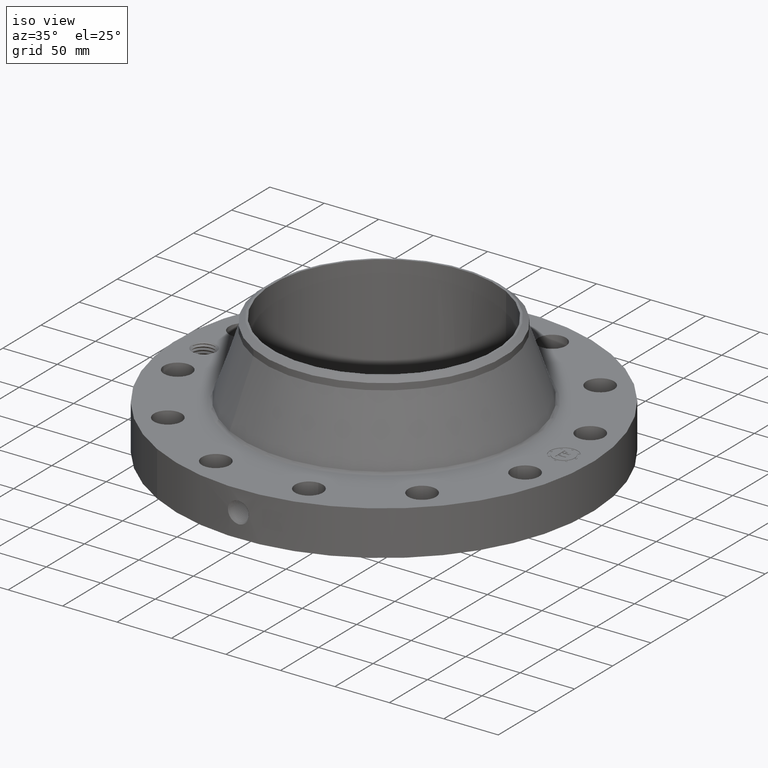
[diagram: clean part render]
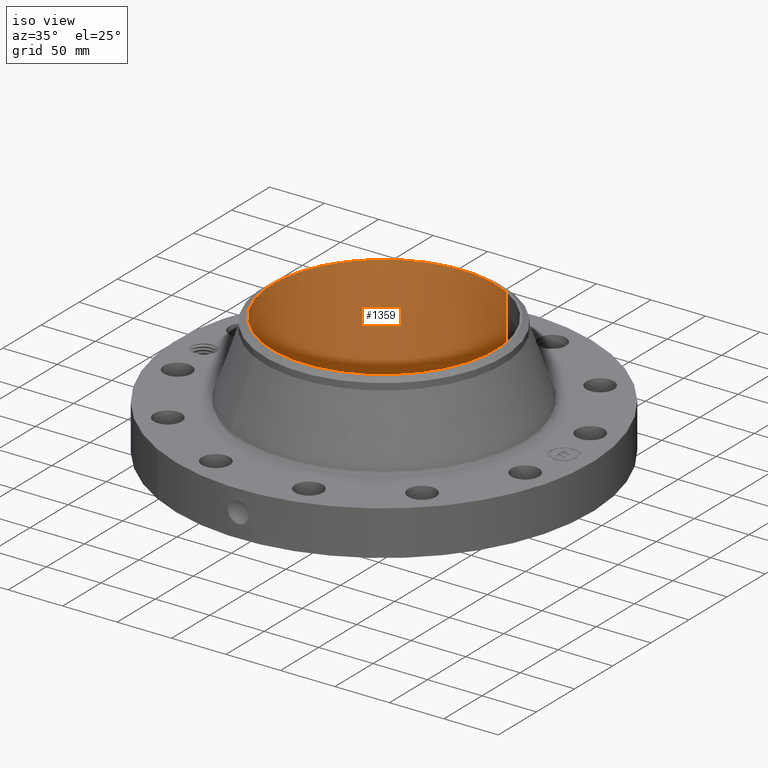
[diagram: same view with one face highlighted and labeled with its STEP entity id]
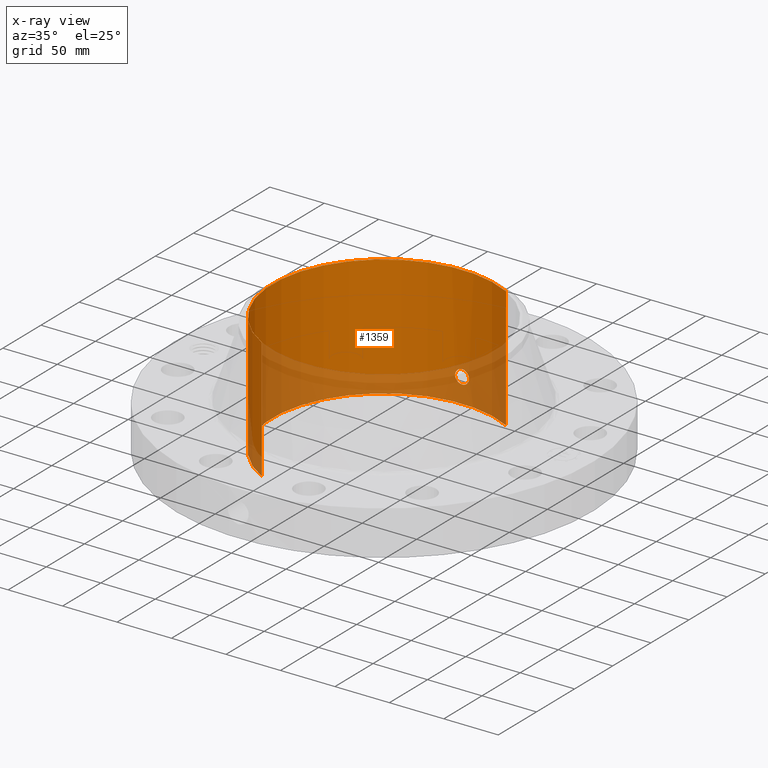
[diagram: x-ray of the same camera — body ghosted, the highlighted face saturated]
A machine part, iso view. The second image highlights one B-rep face of the part: STEP entity #1359.
The next image is the same camera in x-ray: the body ghosted, the highlighted face saturated — about 27% of this face is hidden behind the body in this view.
In plain terms, the highlighted cylindrical surface (partial cylindrical patch) has radius 102.502 mm, axis along (0, 0, -1).
Its self-contained STEP definition (entity closure, byte-faithful):
#223=AXIS2_PLACEMENT_3D('Circle Axis2P3D',#221,#222,$) ;
#1236=AXIS2_PLACEMENT_3D('Cylinder Axis2P3D',#1233,#1234,#1235) ;
#1308=AXIS2_PLACEMENT_3D('Circle Axis2P3D',#1306,#1307,$) ;
#216=CARTESIAN_POINT('Vertex',(1.93472176105,3.54148442852,0.0600000000002)) ;
#218=CARTESIAN_POINT('Vertex',(-1.93472176105,-3.54148442852,0.0600000000002)) ;
#221=CARTESIAN_POINT('Axis2P3D Location',(0.,0.,0.0600000000002)) ;
#1233=CARTESIAN_POINT('Axis2P3D Location',(0.,0.,2.25000000001)) ;
#1242=CARTESIAN_POINT('Vertex',(1.93472176104,3.54148442852,4.44000000002)) ;
#1244=CARTESIAN_POINT('Vertex',(-1.93472176105,-3.54148442852,4.44000000002)) ;
#1247=CARTESIAN_POINT('Line Origine',(1.93472176105,3.54148442852,2.25000000001)) ;
#1252=CARTESIAN_POINT('Line Origine',(-1.93472176105,-3.54148442852,2.25000000001)) ;
#1306=CARTESIAN_POINT('Axis2P3D Location',(0.,0.,4.44000000002)) ;
#1318=CARTESIAN_POINT('Control Point',(0.219395640473,4.02953171015,1.05985638466)) ;
#1319=CARTESIAN_POINT('Control Point',(0.206921897875,4.03021086717,1.08268941733)) ;
#1320=CARTESIAN_POINT('Control Point',(0.191479220651,4.03100326363,1.10389712388)) ;
#1321=CARTESIAN_POINT('Control Point',(0.173347707623,4.03184763012,1.12296744039)) ;
#1322=CARTESIAN_POINT('Control Point',(0.112154131034,4.03428922436,1.17243672759)) ;
#1323=CARTESIAN_POINT('Control Point',(0.0350123426819,4.03587551204,1.19596634699)) ;
#1324=CARTESIAN_POINT('Control Point',(-0.0195280777705,4.03599449568,1.19761227387)) ;
#1325=CARTESIAN_POINT('Control Point',(-0.124103877723,4.03424989946,1.17248651285)) ;
#1326=CARTESIAN_POINT('Control Point',(-0.20314304521,4.03063623123,1.09961257144)) ;
#1327=CARTESIAN_POINT('Control Point',(-0.232130154619,4.02885574928,1.05341902732)) ;
#1328=CARTESIAN_POINT('Control Point',(-0.255826961291,4.02738808668,0.975254533023)) ;
#1329=CARTESIAN_POINT('Control Point',(-0.248306737183,4.02785344579,0.895845211312)) ;
#1330=CARTESIAN_POINT('Control Point',(-0.242072390403,4.02824497786,0.869244316291)) ;
#1331=CARTESIAN_POINT('Control Point',(-0.232330199642,4.02882746308,0.843820167096)) ;
#1332=CARTESIAN_POINT('Control Point',(-0.219395640473,4.02953171015,0.820143615352)) ;
#1333=CARTESIAN_POINT('Vertex',(0.219395640473,4.02953171015,1.05985638466)) ;
#1335=CARTESIAN_POINT('Vertex',(-0.219395640473,4.02953171015,0.820143615352)) ;
#1339=CARTESIAN_POINT('Control Point',(-0.219395640473,4.02953171015,0.820143615352)) ;
#1340=CARTESIAN_POINT('Control Point',(-0.206921897875,4.03021086717,0.797310582682)) ;
#1341=CARTESIAN_POINT('Control Point',(-0.19147922065,4.03100326363,0.776102876127)) ;
#1342=CARTESIAN_POINT('Control Point',(-0.173347707622,4.03184763012,0.757032559616)) ;
#1343=CARTESIAN_POINT('Control Point',(-0.112154131018,4.03428922436,0.707563272407)) ;
#1344=CARTESIAN_POINT('Control Point',(-0.0350123426438,4.03587551204,0.684033653001)) ;
#1345=CARTESIAN_POINT('Control Point',(0.0195280777395,4.03599449568,0.682387726126)) ;
#1346=CARTESIAN_POINT('Control Point',(0.12410387774,4.03424989946,0.707513487158)) ;
#1347=CARTESIAN_POINT('Control Point',(0.203143045256,4.03063623122,0.780387428609)) ;
#1348=CARTESIAN_POINT('Control Point',(0.232130154605,4.02885574928,0.82658097263)) ;
#1349=CARTESIAN_POINT('Control Point',(0.255826961314,4.02738808668,0.904745467027)) ;
#1350=CARTESIAN_POINT('Control Point',(0.24830673717,4.02785344579,0.984154788835)) ;
#1351=CARTESIAN_POINT('Control Point',(0.242072390452,4.02824497786,1.01075568359)) ;
#1352=CARTESIAN_POINT('Control Point',(0.232330199675,4.02882746308,1.03617983285)) ;
#1353=CARTESIAN_POINT('Control Point',(0.219395640473,4.02953171015,1.05985638466)) ;
#222=DIRECTION('Axis2P3D Direction',(0.,0.,-0.0393700787402)) ;
#1234=DIRECTION('Axis2P3D Direction',(0.,0.,-0.0393700787402)) ;
#1235=DIRECTION('Axis2P3D XDirection',(-0.0188750212049,-0.0345504945626,0.)) ;
#1248=DIRECTION('Vector Direction',(0.,0.,-0.0393700787402)) ;
#1253=DIRECTION('Vector Direction',(0.,0.,-0.0393700787402)) ;
#1307=DIRECTION('Axis2P3D Direction',(0.,0.,-0.0393700787402)) ;
#1249=VECTOR('Line Direction',#1248,0.0393700787402) ;
#1254=VECTOR('Line Direction',#1253,0.0393700787402) ;
#1312=ORIENTED_EDGE('',*,*,#1310,.F.) ;
#1313=ORIENTED_EDGE('',*,*,#1256,.T.) ;
#1314=ORIENTED_EDGE('',*,*,#225,.T.) ;
#1315=ORIENTED_EDGE('',*,*,#1251,.F.) ;
#1356=ORIENTED_EDGE('',*,*,#1337,.F.) ;
#1357=ORIENTED_EDGE('',*,*,#1354,.F.) ;
#1358=FACE_BOUND('',#1355,.T.) ;
#1359=ADVANCED_FACE('PartBody',(#1316,#1358),#1237,.F.) ;
#1317=B_SPLINE_CURVE_WITH_KNOTS('',5,(#1318,#1319,#1320,#1321,#1322,#1323,#1324,#1325,#1326,#1327,#1328,#1329,#1330,#1331,#1332),.UNSPECIFIED.,.F.,.U.,(6,3,3,3,6),(0.,4.67457617455,14.0214890613,23.3714411419,28.2187098459),.UNSPECIFIED.) ;
#1338=B_SPLINE_CURVE_WITH_KNOTS('',5,(#1339,#1340,#1341,#1342,#1343,#1344,#1345,#1346,#1347,#1348,#1349,#1350,#1351,#1352,#1353),.UNSPECIFIED.,.F.,.U.,(6,3,3,3,6),(0.,4.67457617466,14.0214890645,23.3714411502,28.2187098664),.UNSPECIFIED.) ;
#224=CIRCLE('generated circle',#223,4.03550000002) ;
#1309=CIRCLE('generated circle',#1308,4.03550000002) ;
#1237=CYLINDRICAL_SURFACE('generated cylinder',#1236,4.03550000002) ;
#225=EDGE_CURVE('',#219,#217,#224,.T.) ;
#1251=EDGE_CURVE('',#1243,#217,#1250,.T.) ;
#1256=EDGE_CURVE('',#1245,#219,#1255,.T.) ;
#1310=EDGE_CURVE('',#1245,#1243,#1309,.T.) ;
#1337=EDGE_CURVE('',#1334,#1336,#1317,.T.) ;
#1354=EDGE_CURVE('',#1336,#1334,#1338,.T.) ;
#1311=EDGE_LOOP('',(#1312,#1313,#1314,#1315)) ;
#1355=EDGE_LOOP('',(#1356,#1357)) ;
#1316=FACE_OUTER_BOUND('',#1311,.T.) ;
#1250=LINE('Line',#1247,#1249) ;
#1255=LINE('Line',#1252,#1254) ;
#217=VERTEX_POINT('',#216) ;
#219=VERTEX_POINT('',#218) ;
#1243=VERTEX_POINT('',#1242) ;
#1245=VERTEX_POINT('',#1244) ;
#1334=VERTEX_POINT('',#1333) ;
#1336=VERTEX_POINT('',#1335) ;